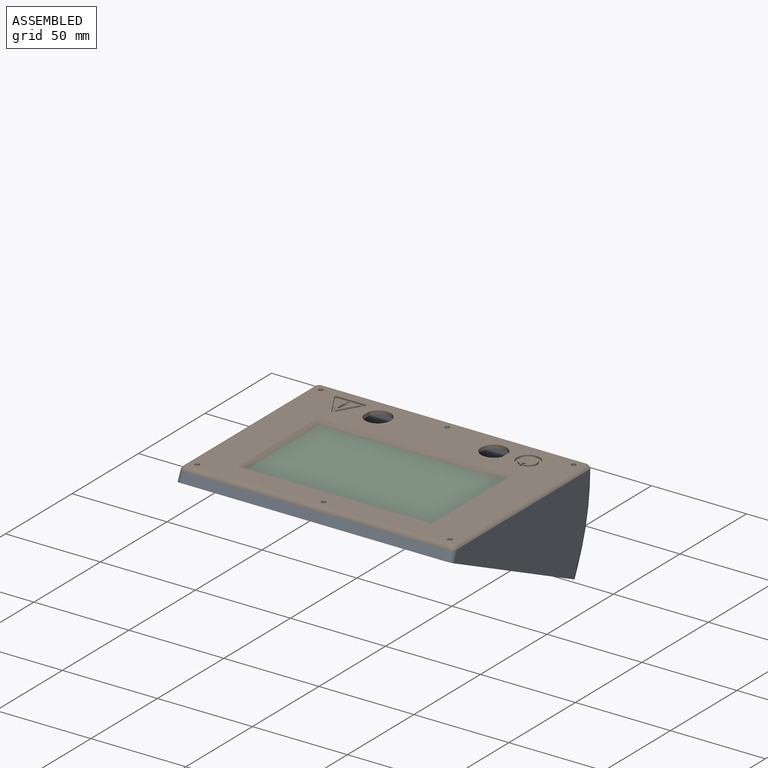
[diagram: assembled view]
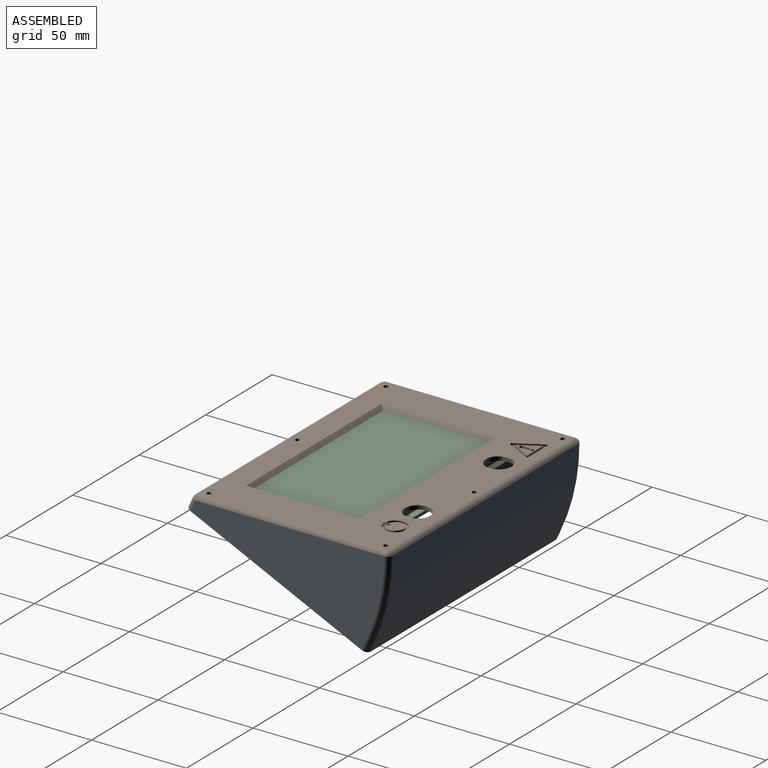
[diagram: assembled view, second angle]
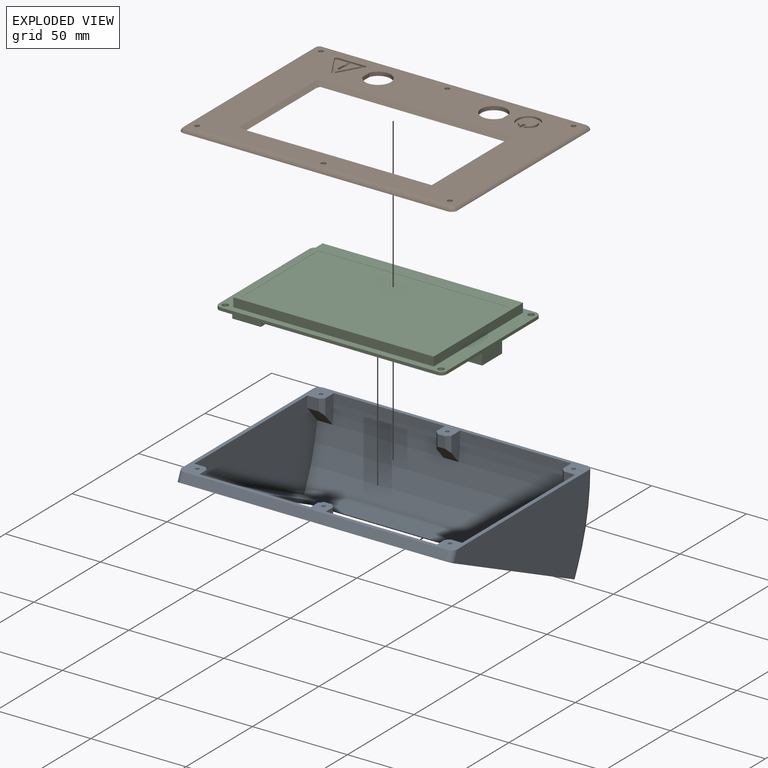
[diagram: exploded view]
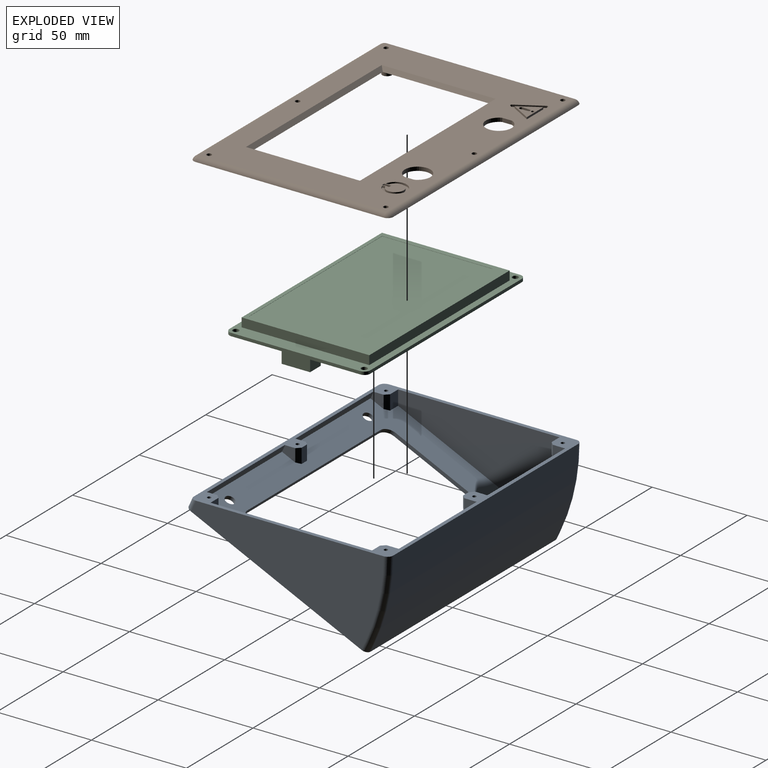
[diagram: exploded view, second angle]
ASSEMBLY  parts=3 mates=2
PART A: 71 faces, bbox 145x113.7x53 mm
  f0: plane 141x101mm, normal (0,0,1), area 6249.2mm2, adj f1,f3,f4,f6,f11,f16,f17,f18
  f1: plane 94.39x42.94mm, normal (-1,0,0), area 2481.8mm2, adj f0,f2,f11,f14,f34,f41,f44
  f2: cylinder r=103mm len=141mm, axis (-1,0,0), area 5984.8mm2, adj f1,f3,f11,f14,f35,f38,f39,f40
  f3: plane 94.39x42.94mm, normal (1,0,0), area 2481.8mm2, adj f0,f2,f11,f14,f29,f36,f42
  f4: plane 58.5x3mm, normal (0,-1,0), area 175.5mm2, adj f0,f5,f32,f33
  f5: cylinder r=2mm len=58.5mm, axis (-1,0,0), area 51.1mm2, adj f4,f14,f32,f33
  f6: plane 58.5x3mm, normal (0,-1,0), area 175.5mm2, adj f0,f7,f28,f30
  f7: cylinder r=2mm len=58.5mm, axis (-1,0,0), area 51.1mm2, adj f6,f14,f28,f30
  f8: plane 99x48.11mm, normal (1,0,0), area 2762.7mm2, adj f13,f14,f59,f60,f61
  f9: plane 139x5mm, normal (0,1,0), area 695mm2, adj f13,f14,f61,f62
  f10: plane 99x48.11mm, normal (-1,0,0), area 2762.7mm2, adj f13,f14,f57,f58,f62
  f11: plane 141x3mm, normal (0,1,0), area 423mm2, adj f0,f1,f2,f3
  f12: plane 139x5mm, normal (0,-1,0), area 695mm2, adj f13,f15,f57,f59
  f13: plane 145x105mm, normal (0,0,-1), area 7453.8mm2, adj f8,f9,f10,f12,f16,f17,f18,f19
  f14: plane 145x95.16mm, normal (0,0.42,0.91), area 1325mm2, adj f1,f2,f3,f5,f7,f8,f9,f10
  f15: cylinder r=105mm len=139mm, axis (-1,0,0), area 6368.3mm2, adj f12,f14,f58,f60
  f16: plane 100x2mm, normal (0,-1,0), area 200mm2, adj f0,f13,f17,f23
  f17: cylinder r=5mm len=5mm, axis (0,0,-1), area 15.7mm2, adj f0,f13,f16,f18
  f18: plane 60x2mm, normal (-1,0,0), area 120mm2, adj f0,f13,f17,f19
  f19: cylinder r=5mm len=5mm, axis (0,0,-1), area 15.7mm2, adj f0,f13,f18,f20
  f20: plane 100x2mm, normal (0,1,0), area 200mm2, adj f0,f13,f19,f21
  f21: cylinder r=5mm len=5mm, axis (0,0,-1), area 15.7mm2, adj f0,f13,f20,f22
  f22: plane 60x2mm, normal (1,0,0), area 120mm2, adj f0,f13,f21,f23
  f23: cylinder r=5mm len=5mm, axis (0,0,-1), area 15.7mm2, adj f0,f13,f16,f22
  f24: cylinder r=2.6mm len=5.2mm, axis (0,0,-1), area 32.7mm2, adj f0,f13
  f25: cylinder r=2.6mm len=5.2mm, axis (0,0,-1), area 32.7mm2, adj f0,f13
  f26: cylinder r=2.6mm len=5.2mm, axis (0,0,-1), area 32.7mm2, adj f0,f13
  f27: cylinder r=2.6mm len=5.2mm, axis (0,0,-1), area 32.7mm2, adj f0,f13
  f28: plane 7.86x6.17mm, normal (1,0,0), area 33.2mm2, adj f0,f6,f7,f14,f70
  f29: plane 7.02x6mm, normal (0,-0.91,0.42), area 46.4mm2, adj f0,f3,f14,f70
  f30: plane 7.86x6.17mm, normal (-1,0,0), area 33.2mm2, adj f0,f6,f7,f14,f69
  f31: plane 7.02x4mm, normal (0,-0.91,0.42), area 31mm2, adj f0,f14,f68,f69
  f32: plane 7.86x6.17mm, normal (1,0,0), area 33.2mm2, adj f0,f4,f5,f14,f68
  f33: plane 7.86x6.17mm, normal (-1,0,0), area 33.2mm2, adj f0,f4,f5,f14,f67
  f34: plane 7.02x6mm, normal (0,-0.91,0.42), area 46.4mm2, adj f0,f1,f14,f67
  f35: plane 13.69x11.12mm, normal (1,0,0), area 72.8mm2, adj f2,f14,f42,f63
  f36: plane 6x5.45mm, normal (0,0.91,-0.42), area 36.1mm2, adj f3,f14,f42,f63
  f37: plane 5.45x4mm, normal (0,0.91,-0.42), area 24.1mm2, adj f14,f43,f64,f65
  f38: plane 13.69x11.12mm, normal (-1,0,0), area 72.8mm2, adj f2,f14,f43,f64
  f39: plane 13.69x11.12mm, normal (1,0,0), area 72.8mm2, adj f2,f14,f43,f65
  f40: plane 13.69x11.12mm, normal (-1,0,0), area 72.8mm2, adj f2,f14,f44,f66
  f41: plane 6x5.45mm, normal (0,0.91,-0.42), area 36.1mm2, adj f1,f14,f44,f66
  f42: plane 10.39x8mm, normal (0,0.41,-0.91), area 88mm2, adj f2,f3,f35,f36,f63
  f43: plane 10.39x8mm, normal (0,0.41,-0.91), area 85mm2, adj f2,f37,f38,f39,f64,f65
  f44: plane 10.39x8mm, normal (0,0.41,-0.91), area 88mm2, adj f1,f2,f40,f41,f66
  f45: cylinder r=1mm len=6.28mm, axis (0,0.42,0.91), area 37.7mm2, adj f14,f46
  f46: plane 2x1.81mm, normal (0,0.42,0.91), area 3.1mm2, adj f45
  f47: cylinder r=1mm len=6.28mm, axis (0,0.42,0.91), area 37.7mm2, adj f14,f48
  f48: plane 2x1.81mm, normal (0,0.42,0.91), area 3.1mm2, adj f47
  f49: cylinder r=1mm len=6.28mm, axis (0,0.42,0.91), area 37.7mm2, adj f14,f50
  f50: plane 2x1.81mm, normal (0,0.42,0.91), area 3.1mm2, adj f49
  f51: cylinder r=1mm len=6.28mm, axis (0,0.42,0.91), area 37.7mm2, adj f14,f52
  f52: plane 2x1.81mm, normal (0,0.42,0.91), area 3.1mm2, adj f51
  f53: cylinder r=1mm len=6.28mm, axis (0,0.42,0.91), area 37.7mm2, adj f14,f54
  f54: plane 2x1.81mm, normal (0,0.42,0.91), area 3.1mm2, adj f53
  f55: cylinder r=1mm len=6.28mm, axis (0,0.42,0.91), area 37.7mm2, adj f14,f56
  f56: plane 2x1.81mm, normal (0,0.42,0.91), area 3.1mm2, adj f55
  f57: cylinder r=3mm len=5mm, axis (0,0,-1), area 23.6mm2, adj f10,f12,f13,f58
  f58: torus R=102mm, axis (-1,0,0), area 213.7mm2, adj f10,f14,f15,f57
  f59: cylinder r=3mm len=5mm, axis (0,0,1), area 23.6mm2, adj f8,f12,f13,f60
  f60: torus R=102mm, axis (-1,0,0), area 213.7mm2, adj f8,f14,f15,f59
  f61: cylinder r=3mm len=6.4mm, axis (0,0,-1), area 26mm2, adj f8,f9,f13,f14
  f62: cylinder r=3mm len=6.4mm, axis (0,0,1), area 26mm2, adj f9,f10,f13,f14
  f63: plane 7.54x5.33mm, normal (0.71,0.64,-0.3), area 20.3mm2, adj f14,f35,f36,f42
  f64: plane 7.54x5.33mm, normal (-0.71,0.64,-0.3), area 20.3mm2, adj f14,f37,f38,f43
  f65: plane 7.54x5.33mm, normal (0.71,0.64,-0.3), area 20.3mm2, adj f14,f37,f39,f43
  f66: plane 7.54x5.33mm, normal (-0.71,0.64,-0.3), area 20.3mm2, adj f14,f40,f41,f44
  f67: plane 7.02x5.08mm, normal (-0.71,-0.64,0.3), area 20.6mm2, adj f0,f14,f33,f34
  f68: plane 7.02x5.08mm, normal (0.71,-0.64,0.3), area 20.6mm2, adj f0,f14,f31,f32
  f69: plane 7.02x5.08mm, normal (-0.71,-0.64,0.3), area 20.6mm2, adj f0,f14,f30,f31
  f70: plane 7.02x5.08mm, normal (0.71,-0.64,0.3), area 20.6mm2, adj f0,f14,f28,f29
PART B: 98 faces, bbox 145x105x6.7 mm
  f0: plane 139.34x99.34mm, normal (0,0,1), area 7226.4mm2, adj f48,f49,f50,f51,f52,f53,f54,f55
  f1: plane 145x105mm, normal (0,0,-1), area 8745.8mm2, adj f3,f7,f11,f15,f18,f19,f20,f21
  f2: cylinder r=1mm len=4.7mm, axis (0,0,1), area 29.5mm2, adj f4,f5
  f3: cylinder r=2.5mm len=5mm, axis (0,0,1), area 73.8mm2, adj f1,f4
  f4: plane 5x5mm, normal (0,0,-1), area 16.5mm2, adj f2,f3
  f5: plane 2x2mm, normal (0,0,-1), area 3.1mm2, adj f2
  f6: cylinder r=1mm len=4.7mm, axis (0,0,1), area 29.5mm2, adj f8,f9
  f7: cylinder r=2.5mm len=5mm, axis (0,0,1), area 73.8mm2, adj f1,f8
  f8: plane 5x5mm, normal (0,0,-1), area 16.5mm2, adj f6,f7
  f9: plane 2x2mm, normal (0,0,-1), area 3.1mm2, adj f6
  f10: cylinder r=1mm len=4.7mm, axis (0,0,1), area 29.5mm2, adj f12,f13
  f11: cylinder r=2.5mm len=5mm, axis (0,0,1), area 73.8mm2, adj f1,f12
  f12: plane 5x5mm, normal (0,0,-1), area 16.5mm2, adj f10,f11
  f13: plane 2x2mm, normal (0,0,-1), area 3.1mm2, adj f10
  f14: cylinder r=1mm len=4.7mm, axis (0,0,1), area 29.5mm2, adj f16,f17
  f15: cylinder r=2.5mm len=5mm, axis (0,0,1), area 73.8mm2, adj f1,f16
  f16: plane 5x5mm, normal (0,0,-1), area 16.5mm2, adj f14,f15
  f17: plane 2x2mm, normal (0,0,-1), area 3.1mm2, adj f14
  f18: plane 1.6x1mm, normal (1,0,0), area 1.6mm2, adj f1,f19,f21,f22
  f19: plane 51.8x1mm, normal (0,1,0), area 51.8mm2, adj f1,f18,f20,f22
  f20: plane 1.6x1mm, normal (-1,0,0), area 1.6mm2, adj f1,f19,f21,f22
  f21: plane 51.8x1mm, normal (0,-1,0), area 51.8mm2, adj f1,f18,f20,f22
  f22: plane 51.8x1.6mm, normal (0,0,-1), area 82.9mm2, adj f18,f19,f20,f21
  f23: plane 51.8x1mm, normal (0,1,0), area 51.8mm2, adj f1,f24,f26,f27
  f24: plane 1.6x1mm, normal (-1,0,0), area 1.6mm2, adj f1,f23,f25,f27
  f25: plane 51.8x1mm, normal (0,-1,0), area 51.8mm2, adj f1,f24,f26,f27
  f26: plane 1.6x1mm, normal (1,0,0), area 1.6mm2, adj f1,f23,f25,f27
  f27: plane 51.8x1.6mm, normal (0,0,-1), area 82.9mm2, adj f23,f24,f25,f26
  f28: plane 1.6x1mm, normal (1,0,0), area 1.6mm2, adj f1,f29,f31,f32
  f29: plane 51.8x1mm, normal (0,1,0), area 51.8mm2, adj f1,f28,f30,f32
  f30: plane 1.6x1mm, normal (-1,0,0), area 1.6mm2, adj f1,f29,f31,f32
  f31: plane 51.8x1mm, normal (0,-1,0), area 51.8mm2, adj f1,f28,f30,f32
  f32: plane 51.8x1.6mm, normal (0,0,-1), area 82.9mm2, adj f28,f29,f30,f31
  f33: plane 51.8x1mm, normal (0,1,0), area 51.8mm2, adj f1,f34,f36,f37
  f34: plane 1.6x1mm, normal (-1,0,0), area 1.6mm2, adj f1,f33,f35,f37
  f35: plane 51.8x1mm, normal (0,-1,0), area 51.8mm2, adj f1,f34,f36,f37
  f36: plane 1.6x1mm, normal (1,0,0), area 1.6mm2, adj f1,f33,f35,f37
  f37: plane 51.8x1.6mm, normal (0,0,-1), area 82.9mm2, adj f33,f34,f35,f36
  f38: plane 81.6x1mm, normal (-1,0,0), area 81.6mm2, adj f1,f39,f41,f42
  f39: plane 1.6x1mm, normal (0,-1,0), area 1.6mm2, adj f1,f38,f40,f42
  f40: plane 81.6x1mm, normal (1,0,0), area 81.6mm2, adj f1,f39,f41,f42
  f41: plane 1.6x1mm, normal (0,1,0), area 1.6mm2, adj f1,f38,f40,f42
  f42: plane 81.6x1.6mm, normal (0,0,-1), area 130.6mm2, adj f38,f39,f40,f41
  f43: plane 1.6x1mm, normal (0,-1,0), area 1.6mm2, adj f1,f44,f46,f47
  f44: plane 81.6x1mm, normal (1,0,0), area 81.6mm2, adj f1,f43,f45,f47
  f45: plane 1.6x1mm, normal (0,1,0), area 1.6mm2, adj f1,f44,f46,f47
  f46: plane 81.6x1mm, normal (-1,0,0), area 81.6mm2, adj f1,f43,f45,f47
  f47: plane 81.6x1.6mm, normal (0,0,-1), area 130.6mm2, adj f43,f44,f45,f46
  f48: plane 5.1x2mm, normal (-1,0,0), area 10.2mm2, adj f0,f1,f49
  f49: cylinder r=6.75mm len=13.5mm, axis (0,0,1), area 74.4mm2, adj f0,f1,f48
  f50: cylinder r=6.75mm len=13.5mm, axis (0,0,1), area 74.4mm2, adj f0,f1,f51
  f51: plane 5.1x2mm, normal (1,0,0), area 10.2mm2, adj f0,f1,f50
  f52: cylinder r=1.25mm len=2.5mm, axis (0,0,-1), area 15.7mm2, adj f0,f1
  f53: cylinder r=1.25mm len=2.5mm, axis (0,0,-1), area 15.7mm2, adj f0,f1
  f54: cylinder r=1.25mm len=2.5mm, axis (0,0,-1), area 15.7mm2, adj f0,f1
  f55: cylinder r=1.25mm len=2.5mm, axis (0,0,-1), area 15.7mm2, adj f0,f1
  f56: cylinder r=1.25mm len=2.5mm, axis (0,0,-1), area 15.7mm2, adj f0,f1
  f57: cylinder r=1.25mm len=2.5mm, axis (0,0,-1), area 15.7mm2, adj f0,f1
  f58: plane 12.99x7.5mm, normal (0.87,0.5,0), area 15mm2, adj f0,f59,f66,f67
  f59: cylinder r=0.75mm len=1.3mm, axis (0,0,1), area 1.6mm2, adj f0,f58,f60,f67
  f60: plane 12.99x7.5mm, normal (-0.87,0.5,0), area 15mm2, adj f0,f59,f61,f67
  f61: cylinder r=0.75mm len=1.13mm, axis (0,0,1), area 1.6mm2, adj f0,f60,f62,f67
  f62: plane 15x1mm, normal (0,-1,0), area 15mm2, adj f0,f61,f66,f67
  f63: plane 10.74x6.2mm, normal (0.87,-0.5,0), area 12.4mm2, adj f64,f65,f67,f78
  f64: plane 10.74x6.2mm, normal (-0.87,-0.5,0), area 12.4mm2, adj f63,f65,f67,f78
  f65: plane 12.4x1mm, normal (0,1,0), area 12.4mm2, adj f63,f64,f67,f78
  f66: cylinder r=0.75mm len=1.13mm, axis (0,0,1), area 1.6mm2, adj f0,f58,f62,f67
  f67: plane 16.5x14.49mm, normal (0,0,1), area 66.3mm2, adj f58,f59,f60,f61,f62,f63,f64,f65
  f68: plane 3.6x1mm, normal (-1,0,0), area 3.6mm2, adj f0,f69,f71,f72
  f69: plane 1.5x1mm, normal (0,-1,0), area 1.5mm2, adj f0,f68,f70,f72
  f70: plane 3.6x1mm, normal (1,0,0), area 3.6mm2, adj f0,f69,f71,f72
  f71: plane 1.5x1mm, normal (0,1,0), area 1.5mm2, adj f0,f68,f70,f72
  f72: plane 3.6x1.5mm, normal (0,0,1), area 5.4mm2, adj f68,f69,f70,f71
  f73: cylinder r=4.5mm len=9mm, axis (0,0,1), area 25.7mm2, adj f0,f74,f76,f77
  f74: plane 1.55x1mm, normal (1,0,0), area 1.5mm2, adj f0,f73,f75,f77
  f75: cylinder r=6mm len=12mm, axis (0,0,1), area 35.2mm2, adj f0,f74,f76,f77
  f76: plane 1.55x1mm, normal (-1,0,0), area 1.5mm2, adj f0,f73,f75,f77
  f77: plane 12x11.87mm, normal (0,0,1), area 45.7mm2, adj f73,f74,f75,f76
  f78: plane 12.4x10.74mm, normal (0,0,1), area 55.4mm2, adj f63,f64,f65,f79,f80,f81,f82,f84
  f79: plane 4.05x1mm, normal (-1,-0.06,0), area 4.1mm2, adj f78,f80,f82,f83
  f80: cylinder r=0.75mm len=1.5mm, axis (0,0,1), area 2.3mm2, adj f78,f79,f81,f83
  f81: plane 4.05x1mm, normal (1,-0.06,0), area 4.1mm2, adj f78,f80,f82,f83
  f82: cylinder r=1mm len=2mm, axis (0,0,1), area 3.1mm2, adj f78,f79,f81,f83
  f83: plane 5.75x2mm, normal (0,0,1), area 9.5mm2, adj f79,f80,f81,f82
  f84: cylinder r=0.75mm len=1.5mm, axis (0,0,1), area 4.7mm2, adj f78,f85
  f85: plane 1.5x1.5mm, normal (0,0,1), area 1.8mm2, adj f84
  f86: cylinder r=3mm len=139mm, axis (-1,0,0), area 513.3mm2, adj f0,f1,f87,f88
  f87: torus R=0.17mm, axis (0,0,-1), area 10.4mm2, adj f0,f1,f86,f89
  f88: torus R=0.17mm, axis (0,0,-1), area 10.4mm2, adj f0,f1,f86,f90
  f89: cylinder r=3mm len=99mm, axis (0,-1,0), area 365.6mm2, adj f0,f1,f87,f91
  f90: cylinder r=3mm len=99mm, axis (0,-1,0), area 365.6mm2, adj f0,f1,f88,f92
  f91: torus R=0.17mm, axis (0,0,-1), area 10.4mm2, adj f0,f1,f89,f93
  f92: torus R=0.17mm, axis (0,0,-1), area 10.4mm2, adj f0,f1,f90,f93
  f93: cylinder r=3mm len=139mm, axis (-1,0,0), area 513.3mm2, adj f0,f1,f91,f92
  f94: plane 60x2mm, normal (-0.71,0,0.71), area 164mm2, adj f0,f1,f95,f96
  f95: plane 102x2mm, normal (0,-0.71,0.71), area 282.8mm2, adj f0,f1,f94,f97
  f96: plane 102x2mm, normal (0,0.71,0.71), area 282.8mm2, adj f0,f1,f94,f97
  f97: plane 60x2mm, normal (0.71,0,0.71), area 164mm2, adj f0,f1,f95,f96
PART C: 32 faces, bbox 120x74x12.3 mm
  f0: plane 68x1.6mm, normal (1,0,0), area 108.8mm2, adj f8,f9,f28,f31
  f1: plane 114x3.6mm, normal (0,1,0), area 212.4mm2, adj f8,f9,f20,f21,f23,f28,f29
  f2: plane 68x7.6mm, normal (-1,0,0), area 198.8mm2, adj f8,f9,f24,f26,f27,f29,f30
  f3: cylinder r=1.6mm len=3.2mm, axis (0,0,-1), area 16.1mm2, adj f8,f9
  f4: cylinder r=1.6mm len=3.2mm, axis (0,0,-1), area 16.1mm2, adj f8,f9
  f5: cylinder r=1.6mm len=3.2mm, axis (0,0,-1), area 16.1mm2, adj f8,f9
  f6: cylinder r=1.6mm len=3.2mm, axis (0,0,-1), area 16.1mm2, adj f8,f9
  f7: plane 114x1.6mm, normal (0,-1,0), area 182.4mm2, adj f8,f9,f30,f31
  f8: plane 120x74mm, normal (0,0,1), area 1750.5mm2, adj f0,f1,f2,f3,f4,f5,f6,f7
  f9: plane 120x74mm, normal (0,0,-1), area 8495.1mm2, adj f0,f1,f2,f3,f4,f5,f6,f7
  f10: plane 67.2x4.7mm, normal (-1,0,0), area 315.8mm2, adj f8,f11,f13,f14
  f11: plane 105.5x4.7mm, normal (0,-1,0), area 495.9mm2, adj f8,f10,f12,f14
  f12: plane 67.2x4.7mm, normal (1,0,0), area 315.8mm2, adj f8,f11,f13,f14
  f13: plane 105.5x4.7mm, normal (0,1,0), area 495.9mm2, adj f8,f10,f12,f14
  f14: plane 105.5x67.2mm, normal (0,0,1), area 1289.6mm2, adj f10,f11,f12,f13,f15,f16,f17,f18
  f15: plane 58x0.1mm, normal (1,0,0), area 5.8mm2, adj f14,f16,f18,f19
  f16: plane 100x0.1mm, normal (0,1,0), area 10mm2, adj f14,f15,f17,f19
  f17: plane 58x0.1mm, normal (-1,0,0), area 5.8mm2, adj f14,f16,f18,f19
  f18: plane 100x0.1mm, normal (0,-1,0), area 10mm2, adj f14,f15,f17,f19
  f19: plane 100x58mm, normal (0,0,1), area 5800mm2, adj f15,f16,f17,f18
  f20: plane 15x2mm, normal (-1,0,0), area 30mm2, adj f1,f9,f22,f23
  f21: plane 15x2mm, normal (1,0,0), area 30mm2, adj f1,f9,f22,f23
  f22: plane 15x2mm, normal (0,-1,0), area 30mm2, adj f9,f20,f21,f23
  f23: plane 15x15mm, normal (0,0,-1), area 225mm2, adj f1,f20,f21,f22
  f24: plane 8x6mm, normal (0,1,0), area 48mm2, adj f2,f9,f25,f27
  f25: plane 15x6mm, normal (1,0,0), area 90mm2, adj f9,f24,f26,f27
  f26: plane 8x6mm, normal (0,-1,0), area 48mm2, adj f2,f9,f25,f27
  f27: plane 15x8mm, normal (0,0,-1), area 120mm2, adj f2,f24,f25,f26
  f28: cylinder r=3mm len=3mm, axis (0,0,-1), area 7.5mm2, adj f0,f1,f8,f9
  f29: cylinder r=3mm len=3mm, axis (0,0,1), area 7.5mm2, adj f1,f2,f8,f9
  f30: cylinder r=3mm len=3mm, axis (0,0,-1), area 7.5mm2, adj f2,f7,f8,f9
  f31: cylinder r=3mm len=3mm, axis (0,0,1), area 7.5mm2, adj f0,f7,f8,f9
PLACE A rot(axis=(0,-0.22,-0.98),180deg) t=(0,-7.03,-20.42)mm
PLACE B at identity fixed
PLACE C rot(axis=(0,0,1),180deg) t=(0,-5.45,0)mm
MATE fastened C.f4 <-> B.f10  axis (0,0,1) through (56.8,28.35,1.6)mm
MATE fastened A.f47 <-> B.f52  axis (0,0,1) through (-66.5,-46.5,6.3)mm
